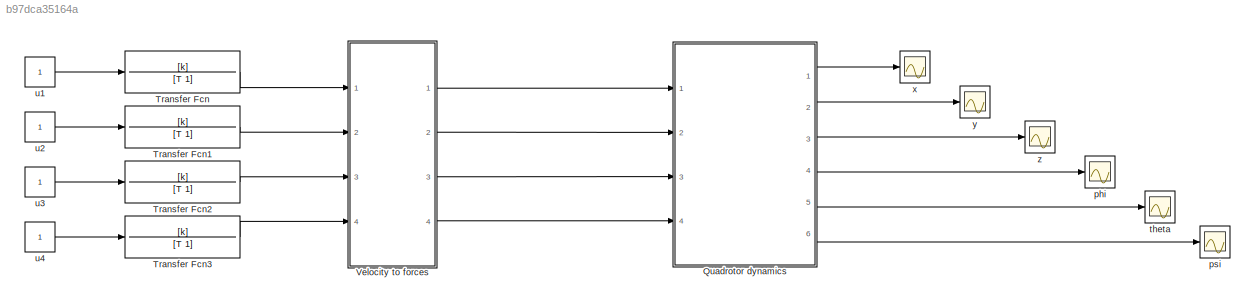
MODEL slx_b97dca35164a
KIND model
CONFIG AbsTol = auto
CONFIG EnableMultiTasking = off
CONFIG FixedStep = auto
CONFIG MaxStep = auto
CONFIG MinStep = auto
CONFIG RelTol = 1e-3
CONFIG SampleTimeConstraint = Unconstrained
CONFIG SolverName = VariableStepAuto
CONFIG StartTime = 0.0
CONFIG StopTime = 10.0
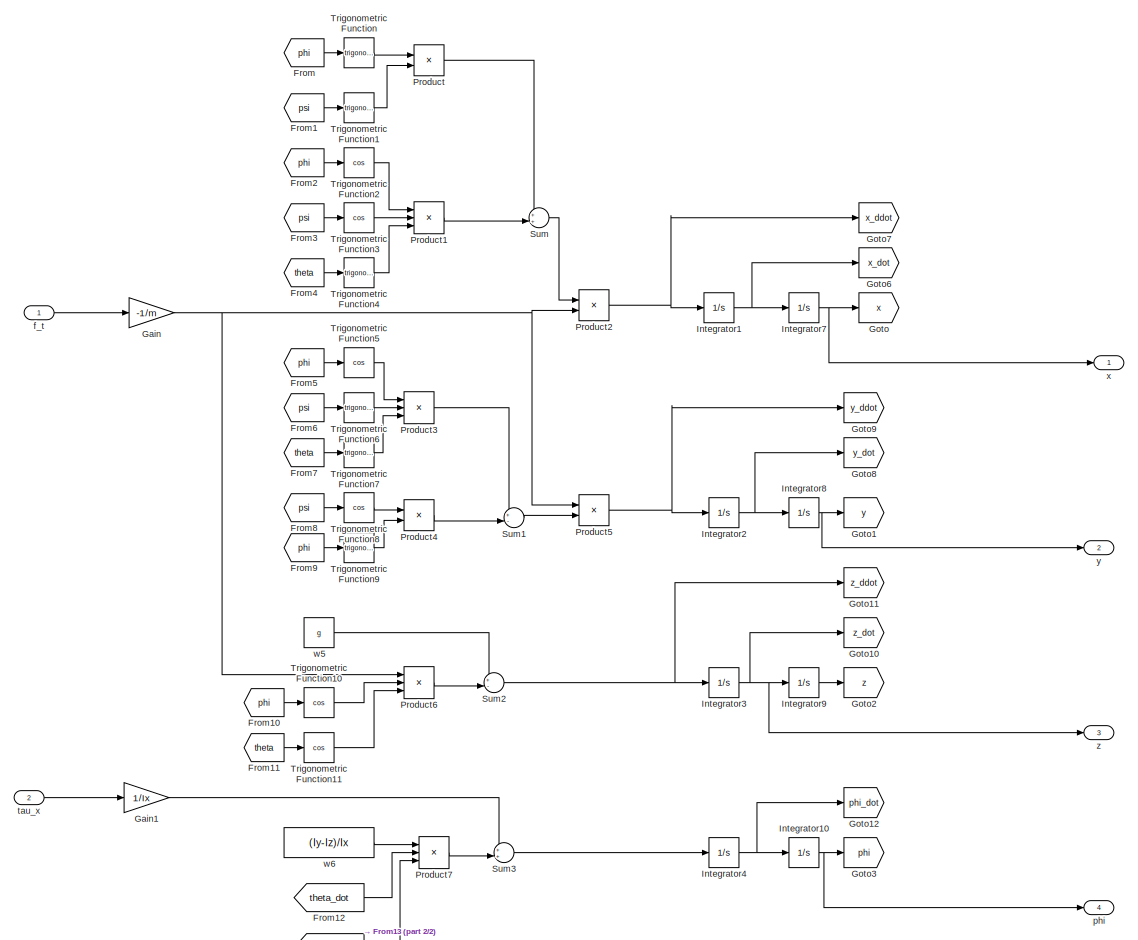
[diagram: Quadrotor dynamics - part 1/2, full width, middle band]
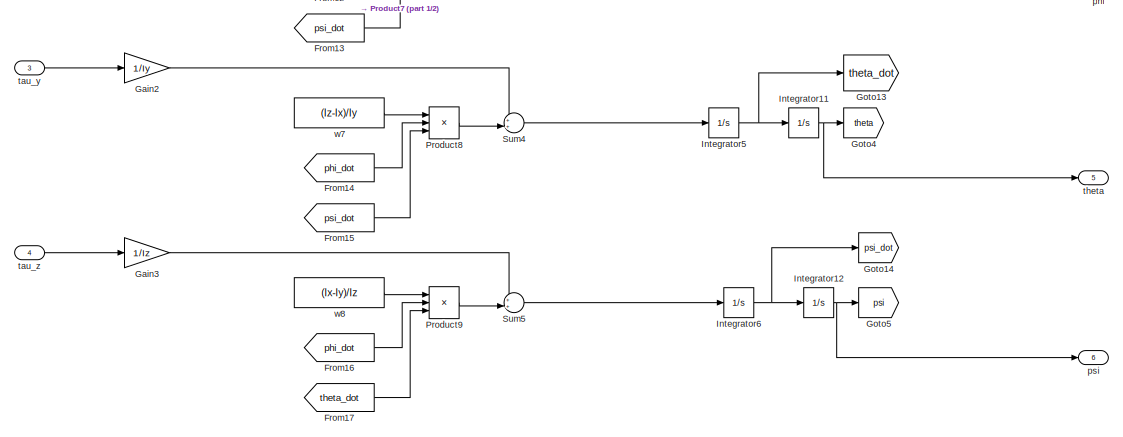
[diagram: Quadrotor dynamics - part 2/2, full width, bottom band]
BLOCK [SubSystem] Quadrotor dynamics
  Ports = [4, 6]
  RequestExecContextInheritance = off
BLOCK [From] Quadrotor dynamics/From
  GotoTag = phi
  TagVisibility = global
BLOCK [From] Quadrotor dynamics/From1
  GotoTag = psi
  TagVisibility = global
BLOCK [From] Quadrotor dynamics/From10
  GotoTag = phi
  TagVisibility = global
BLOCK [From] Quadrotor dynamics/From11
  GotoTag = theta
  TagVisibility = global
BLOCK [From] Quadrotor dynamics/From12
  GotoTag = theta_dot
  TagVisibility = global
BLOCK [From] Quadrotor dynamics/From13
  GotoTag = psi_dot
  TagVisibility = global
BLOCK [From] Quadrotor dynamics/From14
  GotoTag = phi_dot
  TagVisibility = global
BLOCK [From] Quadrotor dynamics/From15
  GotoTag = psi_dot
  TagVisibility = global
BLOCK [From] Quadrotor dynamics/From16
  GotoTag = phi_dot
  TagVisibility = global
BLOCK [From] Quadrotor dynamics/From17
  GotoTag = theta_dot
  TagVisibility = global
BLOCK [From] Quadrotor dynamics/From2
  GotoTag = phi
  TagVisibility = global
BLOCK [From] Quadrotor dynamics/From3
  GotoTag = psi
  TagVisibility = global
BLOCK [From] Quadrotor dynamics/From4
  GotoTag = theta
  TagVisibility = global
BLOCK [From] Quadrotor dynamics/From5
  GotoTag = phi
  TagVisibility = global
BLOCK [From] Quadrotor dynamics/From6
  GotoTag = psi
  TagVisibility = global
BLOCK [From] Quadrotor dynamics/From7
  GotoTag = theta
  TagVisibility = global
BLOCK [From] Quadrotor dynamics/From8
  GotoTag = psi
  TagVisibility = global
BLOCK [From] Quadrotor dynamics/From9
  GotoTag = phi
  TagVisibility = global
BLOCK [Gain] Quadrotor dynamics/Gain
  Gain = -1/m
BLOCK [Gain] Quadrotor dynamics/Gain1
  Gain = 1/Ix
BLOCK [Gain] Quadrotor dynamics/Gain2
  Gain = 1/Iy
BLOCK [Gain] Quadrotor dynamics/Gain3
  Gain = 1/Iz
BLOCK [Goto] Quadrotor dynamics/Goto
  GotoTag = x
  TagVisibility = global
BLOCK [Goto] Quadrotor dynamics/Goto1
  GotoTag = y
  TagVisibility = global
BLOCK [Goto] Quadrotor dynamics/Goto10
  GotoTag = z_dot
  TagVisibility = global
BLOCK [Goto] Quadrotor dynamics/Goto11
  GotoTag = z_ddot
  TagVisibility = global
BLOCK [Goto] Quadrotor dynamics/Goto12
  GotoTag = phi_dot
  TagVisibility = global
BLOCK [Goto] Quadrotor dynamics/Goto13
  GotoTag = theta_dot
  TagVisibility = global
BLOCK [Goto] Quadrotor dynamics/Goto14
  GotoTag = psi_dot
  TagVisibility = global
BLOCK [Goto] Quadrotor dynamics/Goto2
  GotoTag = z
  TagVisibility = global
BLOCK [Goto] Quadrotor dynamics/Goto3
  GotoTag = phi
  TagVisibility = global
BLOCK [Goto] Quadrotor dynamics/Goto4
  GotoTag = theta
  TagVisibility = global
BLOCK [Goto] Quadrotor dynamics/Goto5
  GotoTag = psi
  TagVisibility = global
BLOCK [Goto] Quadrotor dynamics/Goto6
  GotoTag = x_dot
  TagVisibility = global
BLOCK [Goto] Quadrotor dynamics/Goto7
  GotoTag = x_ddot
  TagVisibility = global
BLOCK [Goto] Quadrotor dynamics/Goto8
  GotoTag = y_dot
  TagVisibility = global
BLOCK [Goto] Quadrotor dynamics/Goto9
  GotoTag = y_ddot
  TagVisibility = global
BLOCK [Integrator] Quadrotor dynamics/Integrator1
  Ports = [1, 1]
BLOCK [Integrator] Quadrotor dynamics/Integrator10
  Ports = [1, 1]
BLOCK [Integrator] Quadrotor dynamics/Integrator11
  Ports = [1, 1]
BLOCK [Integrator] Quadrotor dynamics/Integrator12
  Ports = [1, 1]
BLOCK [Integrator] Quadrotor dynamics/Integrator2
  Ports = [1, 1]
BLOCK [Integrator] Quadrotor dynamics/Integrator3
  Ports = [1, 1]
BLOCK [Integrator] Quadrotor dynamics/Integrator4
  Ports = [1, 1]
BLOCK [Integrator] Quadrotor dynamics/Integrator5
  Ports = [1, 1]
BLOCK [Integrator] Quadrotor dynamics/Integrator6
  Ports = [1, 1]
BLOCK [Integrator] Quadrotor dynamics/Integrator7
  Ports = [1, 1]
BLOCK [Integrator] Quadrotor dynamics/Integrator8
  Ports = [1, 1]
BLOCK [Integrator] Quadrotor dynamics/Integrator9
  Ports = [1, 1]
BLOCK [Product] Quadrotor dynamics/Product
  Ports = [2, 1]
BLOCK [Product] Quadrotor dynamics/Product1
  Inputs = 3
  Ports = [3, 1]
BLOCK [Product] Quadrotor dynamics/Product2
  Ports = [2, 1]
BLOCK [Product] Quadrotor dynamics/Product3
  Inputs = 3
  Ports = [3, 1]
BLOCK [Product] Quadrotor dynamics/Product4
  Ports = [2, 1]
BLOCK [Product] Quadrotor dynamics/Product5
  Ports = [2, 1]
BLOCK [Product] Quadrotor dynamics/Product6
  Inputs = 3
  Ports = [3, 1]
BLOCK [Product] Quadrotor dynamics/Product7
  Inputs = 3
  Ports = [3, 1]
BLOCK [Product] Quadrotor dynamics/Product8
  Inputs = 3
  Ports = [3, 1]
BLOCK [Product] Quadrotor dynamics/Product9
  Inputs = 3
  Ports = [3, 1]
BLOCK [Sum] Quadrotor dynamics/Sum
  Inputs = ++|
  Ports = [2, 1]
BLOCK [Sum] Quadrotor dynamics/Sum1
  Inputs = +-|
  Ports = [2, 1]
BLOCK [Sum] Quadrotor dynamics/Sum2
  Inputs = +-|
  Ports = [2, 1]
BLOCK [Sum] Quadrotor dynamics/Sum3
  Inputs = ++|
  Ports = [2, 1]
BLOCK [Sum] Quadrotor dynamics/Sum4
  Inputs = ++|
  Ports = [2, 1]
BLOCK [Sum] Quadrotor dynamics/Sum5
  Inputs = ++|
  Ports = [2, 1]
BLOCK [Trigonometry] Quadrotor dynamics/Trigonometric Function
  Ports = [1, 1]
BLOCK [Trigonometry] Quadrotor dynamics/Trigonometric Function1
  Ports = [1, 1]
BLOCK [Trigonometry] Quadrotor dynamics/Trigonometric Function10
  Operator = cos
  Ports = [1, 1]
BLOCK [Trigonometry] Quadrotor dynamics/Trigonometric Function11
  Operator = cos
  Ports = [1, 1]
BLOCK [Trigonometry] Quadrotor dynamics/Trigonometric Function2
  Operator = cos
  Ports = [1, 1]
BLOCK [Trigonometry] Quadrotor dynamics/Trigonometric Function3
  Operator = cos
  Ports = [1, 1]
BLOCK [Trigonometry] Quadrotor dynamics/Trigonometric Function4
  Ports = [1, 1]
BLOCK [Trigonometry] Quadrotor dynamics/Trigonometric Function5
  Operator = cos
  Ports = [1, 1]
BLOCK [Trigonometry] Quadrotor dynamics/Trigonometric Function6
  Ports = [1, 1]
BLOCK [Trigonometry] Quadrotor dynamics/Trigonometric Function7
  Ports = [1, 1]
BLOCK [Trigonometry] Quadrotor dynamics/Trigonometric Function8
  Operator = cos
  Ports = [1, 1]
BLOCK [Trigonometry] Quadrotor dynamics/Trigonometric Function9
  Ports = [1, 1]
BLOCK [Inport] Quadrotor dynamics/f_t
BLOCK [Outport] Quadrotor dynamics/phi
  Port = 4
BLOCK [Outport] Quadrotor dynamics/psi
  Port = 6
BLOCK [Inport] Quadrotor dynamics/tau_x
  Port = 2
BLOCK [Inport] Quadrotor dynamics/tau_y
  Port = 3
BLOCK [Inport] Quadrotor dynamics/tau_z
  Port = 4
BLOCK [Outport] Quadrotor dynamics/theta
  Port = 5
BLOCK [Constant] Quadrotor dynamics/w5
  Value = g
BLOCK [Constant] Quadrotor dynamics/w6
  Value = (Iy-Iz)/Ix
BLOCK [Constant] Quadrotor dynamics/w7
  Value = (Iz-Ix)/Iy
BLOCK [Constant] Quadrotor dynamics/w8
  Value = (Ix-Iy)/Iz
BLOCK [Outport] Quadrotor dynamics/x
BLOCK [Outport] Quadrotor dynamics/y
  Port = 2
BLOCK [Outport] Quadrotor dynamics/z
  Port = 3
BLOCK [TransferFcn] Transfer Fcn
  Denominator = [T 1]
  Numerator = [k]
BLOCK [TransferFcn] Transfer Fcn1
  Denominator = [T 1]
  Numerator = [k]
BLOCK [TransferFcn] Transfer Fcn2
  Denominator = [T 1]
  Numerator = [k]
BLOCK [TransferFcn] Transfer Fcn3
  Denominator = [T 1]
  Numerator = [k]
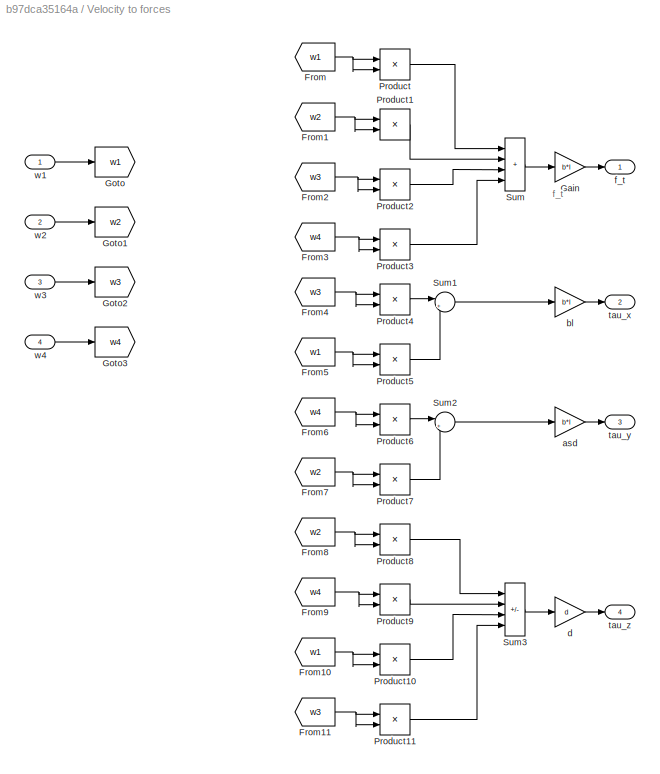
BLOCK [SubSystem] Velocity to forces
  Ports = [4, 4]
  RequestExecContextInheritance = off
BLOCK [From] Velocity to forces/From
  GotoTag = w1
BLOCK [From] Velocity to forces/From1
  GotoTag = w2
BLOCK [From] Velocity to forces/From10
  GotoTag = w1
BLOCK [From] Velocity to forces/From11
  GotoTag = w3
BLOCK [From] Velocity to forces/From2
  GotoTag = w3
BLOCK [From] Velocity to forces/From3
  GotoTag = w4
BLOCK [From] Velocity to forces/From4
  GotoTag = w3
BLOCK [From] Velocity to forces/From5
  GotoTag = w1
BLOCK [From] Velocity to forces/From6
  GotoTag = w4
BLOCK [From] Velocity to forces/From7
  GotoTag = w2
BLOCK [From] Velocity to forces/From8
  GotoTag = w2
BLOCK [From] Velocity to forces/From9
  GotoTag = w4
BLOCK [Gain] Velocity to forces/Gain
  Gain = b*l
BLOCK [Goto] Velocity to forces/Goto
  GotoTag = w1
BLOCK [Goto] Velocity to forces/Goto1
  GotoTag = w2
BLOCK [Goto] Velocity to forces/Goto2
  GotoTag = w3
BLOCK [Goto] Velocity to forces/Goto3
  GotoTag = w4
BLOCK [Product] Velocity to forces/Product
  Ports = [2, 1]
BLOCK [Product] Velocity to forces/Product1
  Ports = [2, 1]
BLOCK [Product] Velocity to forces/Product10
  Ports = [2, 1]
BLOCK [Product] Velocity to forces/Product11
  Ports = [2, 1]
BLOCK [Product] Velocity to forces/Product2
  Ports = [2, 1]
BLOCK [Product] Velocity to forces/Product3
  Ports = [2, 1]
BLOCK [Product] Velocity to forces/Product4
  Ports = [2, 1]
BLOCK [Product] Velocity to forces/Product5
  Ports = [2, 1]
BLOCK [Product] Velocity to forces/Product6
  Ports = [2, 1]
BLOCK [Product] Velocity to forces/Product7
  Ports = [2, 1]
BLOCK [Product] Velocity to forces/Product8
  Ports = [2, 1]
BLOCK [Product] Velocity to forces/Product9
  Ports = [2, 1]
BLOCK [Sum] Velocity to forces/Sum
  IconShape = rectangular
  Inputs = ++++
  Ports = [4, 1]
BLOCK [Sum] Velocity to forces/Sum1
  Inputs = |+-
  Ports = [2, 1]
BLOCK [Sum] Velocity to forces/Sum2
  Inputs = |+-
  Ports = [2, 1]
BLOCK [Sum] Velocity to forces/Sum3
  IconShape = rectangular
  Inputs = ++--
  Ports = [4, 1]
BLOCK [Gain] Velocity to forces/asd
  Gain = b*l
BLOCK [Gain] Velocity to forces/bl
  Gain = b*l
BLOCK [Gain] Velocity to forces/d
  Gain = d
BLOCK [Outport] Velocity to forces/f_t
BLOCK [Outport] Velocity to forces/tau_x
  Port = 2
BLOCK [Outport] Velocity to forces/tau_y
  Port = 3
BLOCK [Outport] Velocity to forces/tau_z
  Port = 4
BLOCK [Inport] Velocity to forces/w1
BLOCK [Inport] Velocity to forces/w2
  Port = 2
BLOCK [Inport] Velocity to forces/w3
  Port = 3
BLOCK [Inport] Velocity to forces/w4
  Port = 4
BLOCK [Scope] phi
  Floating = off
  NumInputPorts = 1
  Ports = [1]
  ScopeSpecificationString = Simulink.scopes.TimeScopeBlockCfg('CurrentConfiguration', extmgr.ConfigurationSet(extmgr.Configuration('Core','General UI',true),extmgr.Configuration('Core','Source UI',true),extmgr.Configuration('Sources','WiredSimulink',true,'DataLoggingVariableName','ScopeData3'),extmgr.Configuration('Visuals','Time Domain',true,'SerializedDisplays',{struct('MinYLimReal','-1.00000','MaxYLimReal','1.00000','YLab...<+1404ch>
BLOCK [Scope] psi
  Floating = off
  NumInputPorts = 1
  Ports = [1]
  ScopeSpecificationString = Simulink.scopes.TimeScopeBlockCfg('CurrentConfiguration', extmgr.ConfigurationSet(extmgr.Configuration('Core','General UI',true),extmgr.Configuration('Core','Source UI',true),extmgr.Configuration('Sources','WiredSimulink',true,'DataLoggingVariableName','ScopeData5'),extmgr.Configuration('Visuals','Time Domain',true,'SerializedDisplays',{struct('MinYLimReal','-1.00000','MaxYLimReal','1.00000','YLab...<+1404ch>
BLOCK [Scope] theta
  Floating = off
  NumInputPorts = 1
  Ports = [1]
  ScopeSpecificationString = Simulink.scopes.TimeScopeBlockCfg('CurrentConfiguration', extmgr.ConfigurationSet(extmgr.Configuration('Core','General UI',true),extmgr.Configuration('Core','Source UI',true),extmgr.Configuration('Sources','WiredSimulink',true,'DataLoggingVariableName','ScopeData4'),extmgr.Configuration('Visuals','Time Domain',true,'SerializedDisplays',{struct('MinYLimReal','-1.00000','MaxYLimReal','1.00000','YLab...<+1404ch>
BLOCK [Constant] u1
BLOCK [Constant] u2
BLOCK [Constant] u3
BLOCK [Constant] u4
BLOCK [Scope] x
  Floating = off
  NumInputPorts = 1
  Ports = [1]
  ScopeSpecificationString = Simulink.scopes.TimeScopeBlockCfg('CurrentConfiguration', extmgr.ConfigurationSet(extmgr.Configuration('Core','General UI',true),extmgr.Configuration('Core','Source UI',true),extmgr.Configuration('Sources','WiredSimulink',true),extmgr.Configuration('Visuals','Time Domain',true,'SerializedDisplays',{struct('MinYLimReal','-1.00000','MaxYLimReal','1.00000','YLabelReal','','MinYLimMag','0.00000','MaxY...<+1365ch>
BLOCK [Scope] y
  Floating = off
  NumInputPorts = 1
  Ports = [1]
  ScopeSpecificationString = Simulink.scopes.TimeScopeBlockCfg('CurrentConfiguration', extmgr.ConfigurationSet(extmgr.Configuration('Core','General UI',true),extmgr.Configuration('Core','Source UI',true),extmgr.Configuration('Sources','WiredSimulink',true,'DataLoggingVariableName','ScopeData1'),extmgr.Configuration('Visuals','Time Domain',true,'SerializedDisplays',{struct('MinYLimReal','-1.00000','MaxYLimReal','1.00000','YLab...<+1379ch>
BLOCK [Scope] z
  Floating = off
  NumInputPorts = 1
  Ports = [1]
  ScopeSpecificationString = Simulink.scopes.TimeScopeBlockCfg('CurrentConfiguration', extmgr.ConfigurationSet(extmgr.Configuration('Core','General UI',true),extmgr.Configuration('Core','Source UI',true),extmgr.Configuration('Sources','WiredSimulink',true,'DataLoggingVariableName','ScopeData2'),extmgr.Configuration('Visuals','Time Domain',true,'SerializedDisplays',{struct('MinYLimReal','-17.22499','MaxYLimReal','155.02488','Y...<+1389ch>
ANNOTATION Velocity to forces: f_t
LINE Quadrotor dynamics/From10:1 -> Quadrotor dynamics/Trigonometric Function10:1
LINE Quadrotor dynamics/From11:1 -> Quadrotor dynamics/Trigonometric Function11:1
LINE Quadrotor dynamics/From12:1 -> Quadrotor dynamics/Product7:2
LINE Quadrotor dynamics/From13:1 -> Quadrotor dynamics/Product7:3
LINE Quadrotor dynamics/From14:1 -> Quadrotor dynamics/Product8:2
LINE Quadrotor dynamics/From15:1 -> Quadrotor dynamics/Product8:3
LINE Quadrotor dynamics/From16:1 -> Quadrotor dynamics/Product9:2
LINE Quadrotor dynamics/From17:1 -> Quadrotor dynamics/Product9:3
LINE Quadrotor dynamics/From1:1 -> Quadrotor dynamics/Trigonometric Function1:1
LINE Quadrotor dynamics/From2:1 -> Quadrotor dynamics/Trigonometric Function2:1
LINE Quadrotor dynamics/From3:1 -> Quadrotor dynamics/Trigonometric Function3:1
LINE Quadrotor dynamics/From4:1 -> Quadrotor dynamics/Trigonometric Function4:1
LINE Quadrotor dynamics/From5:1 -> Quadrotor dynamics/Trigonometric Function5:1
LINE Quadrotor dynamics/From6:1 -> Quadrotor dynamics/Trigonometric Function6:1
LINE Quadrotor dynamics/From7:1 -> Quadrotor dynamics/Trigonometric Function7:1
LINE Quadrotor dynamics/From8:1 -> Quadrotor dynamics/Trigonometric Function8:1
LINE Quadrotor dynamics/From9:1 -> Quadrotor dynamics/Trigonometric Function9:1
LINE Quadrotor dynamics/From:1 -> Quadrotor dynamics/Trigonometric Function:1
LINE Quadrotor dynamics/Gain1:1 -> Quadrotor dynamics/Sum3:1
LINE Quadrotor dynamics/Gain2:1 -> Quadrotor dynamics/Sum4:1
LINE Quadrotor dynamics/Gain3:1 -> Quadrotor dynamics/Sum5:1
NET Quadrotor dynamics/Gain:1 -> Quadrotor dynamics/Product2:2, Quadrotor dynamics/Product5:1, Quadrotor dynamics/Product6:1
NET Quadrotor dynamics/Integrator10:1 -> Quadrotor dynamics/Goto3:1, Quadrotor dynamics/phi:1
NET Quadrotor dynamics/Integrator11:1 -> Quadrotor dynamics/Goto4:1, Quadrotor dynamics/theta:1
NET Quadrotor dynamics/Integrator12:1 -> Quadrotor dynamics/Goto5:1, Quadrotor dynamics/psi:1
NET Quadrotor dynamics/Integrator1:1 -> Quadrotor dynamics/Goto6:1, Quadrotor dynamics/Integrator7:1
NET Quadrotor dynamics/Integrator2:1 -> Quadrotor dynamics/Goto8:1, Quadrotor dynamics/Integrator8:1
NET Quadrotor dynamics/Integrator3:1 -> Quadrotor dynamics/Goto10:1, Quadrotor dynamics/Integrator9:1, Quadrotor dynamics/z:1
NET Quadrotor dynamics/Integrator4:1 -> Quadrotor dynamics/Goto12:1, Quadrotor dynamics/Integrator10:1
NET Quadrotor dynamics/Integrator5:1 -> Quadrotor dynamics/Goto13:1, Quadrotor dynamics/Integrator11:1
NET Quadrotor dynamics/Integrator6:1 -> Quadrotor dynamics/Goto14:1, Quadrotor dynamics/Integrator12:1
NET Quadrotor dynamics/Integrator7:1 -> Quadrotor dynamics/Goto:1, Quadrotor dynamics/x:1
NET Quadrotor dynamics/Integrator8:1 -> Quadrotor dynamics/Goto1:1, Quadrotor dynamics/y:1
LINE Quadrotor dynamics/Integrator9:1 -> Quadrotor dynamics/Goto2:1
LINE Quadrotor dynamics/Product1:1 -> Quadrotor dynamics/Sum:2
NET Quadrotor dynamics/Product2:1 -> Quadrotor dynamics/Goto7:1, Quadrotor dynamics/Integrator1:1
LINE Quadrotor dynamics/Product3:1 -> Quadrotor dynamics/Sum1:1
LINE Quadrotor dynamics/Product4:1 -> Quadrotor dynamics/Sum1:2
NET Quadrotor dynamics/Product5:1 -> Quadrotor dynamics/Goto9:1, Quadrotor dynamics/Integrator2:1
LINE Quadrotor dynamics/Product6:1 -> Quadrotor dynamics/Sum2:2
LINE Quadrotor dynamics/Product7:1 -> Quadrotor dynamics/Sum3:2
LINE Quadrotor dynamics/Product8:1 -> Quadrotor dynamics/Sum4:2
LINE Quadrotor dynamics/Product9:1 -> Quadrotor dynamics/Sum5:2
LINE Quadrotor dynamics/Product:1 -> Quadrotor dynamics/Sum:1
LINE Quadrotor dynamics/Sum1:1 -> Quadrotor dynamics/Product5:2
NET Quadrotor dynamics/Sum2:1 -> Quadrotor dynamics/Goto11:1, Quadrotor dynamics/Integrator3:1
LINE Quadrotor dynamics/Sum3:1 -> Quadrotor dynamics/Integrator4:1
LINE Quadrotor dynamics/Sum4:1 -> Quadrotor dynamics/Integrator5:1
LINE Quadrotor dynamics/Sum5:1 -> Quadrotor dynamics/Integrator6:1
LINE Quadrotor dynamics/Sum:1 -> Quadrotor dynamics/Product2:1
LINE Quadrotor dynamics/Trigonometric Function10:1 -> Quadrotor dynamics/Product6:2
LINE Quadrotor dynamics/Trigonometric Function11:1 -> Quadrotor dynamics/Product6:3
LINE Quadrotor dynamics/Trigonometric Function1:1 -> Quadrotor dynamics/Product:2
LINE Quadrotor dynamics/Trigonometric Function2:1 -> Quadrotor dynamics/Product1:1
LINE Quadrotor dynamics/Trigonometric Function3:1 -> Quadrotor dynamics/Product1:2
LINE Quadrotor dynamics/Trigonometric Function4:1 -> Quadrotor dynamics/Product1:3
LINE Quadrotor dynamics/Trigonometric Function5:1 -> Quadrotor dynamics/Product3:1
LINE Quadrotor dynamics/Trigonometric Function6:1 -> Quadrotor dynamics/Product3:2
LINE Quadrotor dynamics/Trigonometric Function7:1 -> Quadrotor dynamics/Product3:3
LINE Quadrotor dynamics/Trigonometric Function8:1 -> Quadrotor dynamics/Product4:1
LINE Quadrotor dynamics/Trigonometric Function9:1 -> Quadrotor dynamics/Product4:2
LINE Quadrotor dynamics/Trigonometric Function:1 -> Quadrotor dynamics/Product:1
LINE Quadrotor dynamics/f_t:1 -> Quadrotor dynamics/Gain:1
LINE Quadrotor dynamics/tau_x:1 -> Quadrotor dynamics/Gain1:1
LINE Quadrotor dynamics/tau_y:1 -> Quadrotor dynamics/Gain2:1
LINE Quadrotor dynamics/tau_z:1 -> Quadrotor dynamics/Gain3:1
LINE Quadrotor dynamics/w5:1 -> Quadrotor dynamics/Sum2:1
LINE Quadrotor dynamics/w6:1 -> Quadrotor dynamics/Product7:1
LINE Quadrotor dynamics/w7:1 -> Quadrotor dynamics/Product8:1
LINE Quadrotor dynamics/w8:1 -> Quadrotor dynamics/Product9:1
LINE Quadrotor dynamics:1 -> x:1
LINE Quadrotor dynamics:2 -> y:1
LINE Quadrotor dynamics:3 -> z:1
LINE Quadrotor dynamics:4 -> phi:1
LINE Quadrotor dynamics:5 -> theta:1
LINE Quadrotor dynamics:6 -> psi:1
LINE Transfer Fcn1:1 -> Velocity to forces:2
LINE Transfer Fcn2:1 -> Velocity to forces:3
LINE Transfer Fcn3:1 -> Velocity to forces:4
LINE Transfer Fcn:1 -> Velocity to forces:1
NET Velocity to forces/From10:1 -> Velocity to forces/Product10:1, Velocity to forces/Product10:2
NET Velocity to forces/From11:1 -> Velocity to forces/Product11:1, Velocity to forces/Product11:2
NET Velocity to forces/From1:1 -> Velocity to forces/Product1:1, Velocity to forces/Product1:2
NET Velocity to forces/From2:1 -> Velocity to forces/Product2:1, Velocity to forces/Product2:2
NET Velocity to forces/From3:1 -> Velocity to forces/Product3:1, Velocity to forces/Product3:2
NET Velocity to forces/From4:1 -> Velocity to forces/Product4:1, Velocity to forces/Product4:2
NET Velocity to forces/From5:1 -> Velocity to forces/Product5:1, Velocity to forces/Product5:2
NET Velocity to forces/From6:1 -> Velocity to forces/Product6:1, Velocity to forces/Product6:2
NET Velocity to forces/From7:1 -> Velocity to forces/Product7:1, Velocity to forces/Product7:2
NET Velocity to forces/From8:1 -> Velocity to forces/Product8:1, Velocity to forces/Product8:2
NET Velocity to forces/From9:1 -> Velocity to forces/Product9:1, Velocity to forces/Product9:2
NET Velocity to forces/From:1 -> Velocity to forces/Product:1, Velocity to forces/Product:2
LINE Velocity to forces/Gain:1 -> Velocity to forces/f_t:1
LINE Velocity to forces/Product10:1 -> Velocity to forces/Sum3:3
LINE Velocity to forces/Product11:1 -> Velocity to forces/Sum3:4
LINE Velocity to forces/Product1:1 -> Velocity to forces/Sum:2
LINE Velocity to forces/Product2:1 -> Velocity to forces/Sum:3
LINE Velocity to forces/Product3:1 -> Velocity to forces/Sum:4
LINE Velocity to forces/Product4:1 -> Velocity to forces/Sum1:1
LINE Velocity to forces/Product5:1 -> Velocity to forces/Sum1:2
LINE Velocity to forces/Product6:1 -> Velocity to forces/Sum2:1
LINE Velocity to forces/Product7:1 -> Velocity to forces/Sum2:2
LINE Velocity to forces/Product8:1 -> Velocity to forces/Sum3:1
LINE Velocity to forces/Product9:1 -> Velocity to forces/Sum3:2
LINE Velocity to forces/Product:1 -> Velocity to forces/Sum:1
LINE Velocity to forces/Sum1:1 -> Velocity to forces/bl:1
LINE Velocity to forces/Sum2:1 -> Velocity to forces/asd:1
LINE Velocity to forces/Sum3:1 -> Velocity to forces/d:1
LINE Velocity to forces/Sum:1 -> Velocity to forces/Gain:1
LINE Velocity to forces/asd:1 -> Velocity to forces/tau_y:1
LINE Velocity to forces/bl:1 -> Velocity to forces/tau_x:1
LINE Velocity to forces/d:1 -> Velocity to forces/tau_z:1
LINE Velocity to forces/w1:1 -> Velocity to forces/Goto:1
LINE Velocity to forces/w2:1 -> Velocity to forces/Goto1:1
LINE Velocity to forces/w3:1 -> Velocity to forces/Goto2:1
LINE Velocity to forces/w4:1 -> Velocity to forces/Goto3:1
LINE Velocity to forces:1 -> Quadrotor dynamics:1
LINE Velocity to forces:2 -> Quadrotor dynamics:2
LINE Velocity to forces:3 -> Quadrotor dynamics:3
LINE Velocity to forces:4 -> Quadrotor dynamics:4
LINE u1:1 -> Transfer Fcn:1
LINE u2:1 -> Transfer Fcn1:1
LINE u3:1 -> Transfer Fcn2:1
LINE u4:1 -> Transfer Fcn3:1
note: NET lines group one-source signal fan-out (src -> all destinations, sorted); 1:1 wires keep LINE
